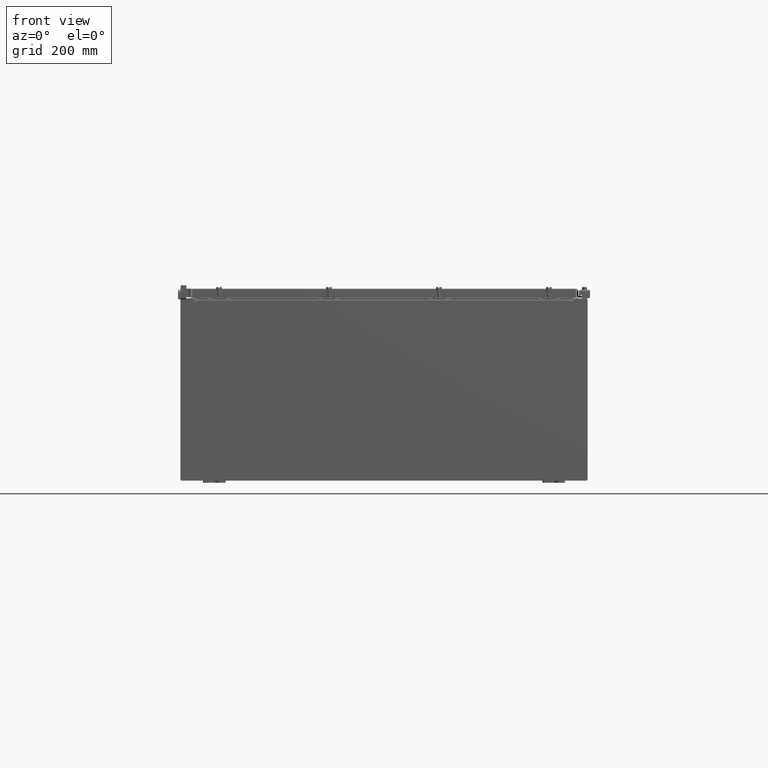
[diagram: clean part render]
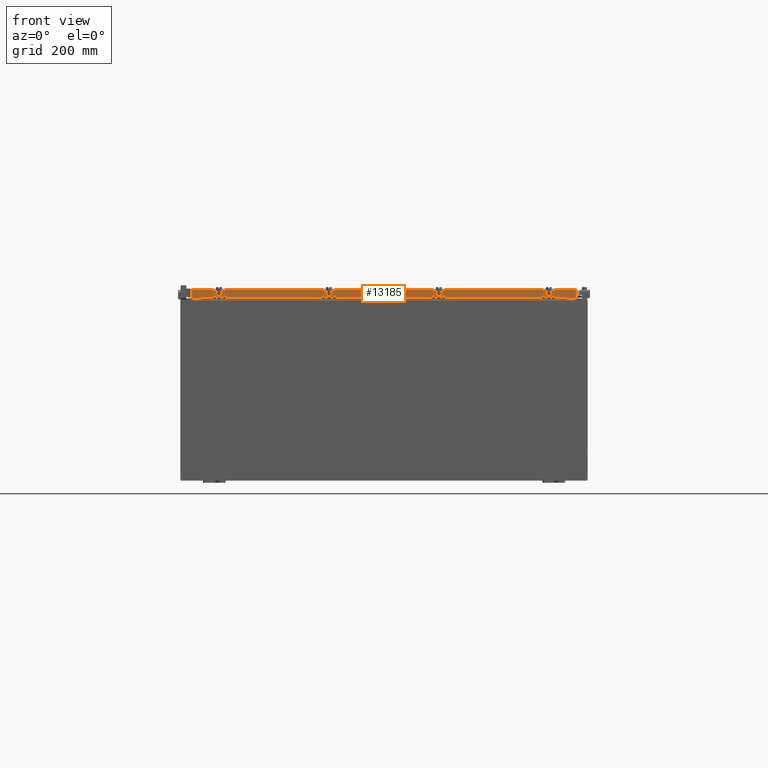
[diagram: same view with one face highlighted and labeled with its STEP entity id]
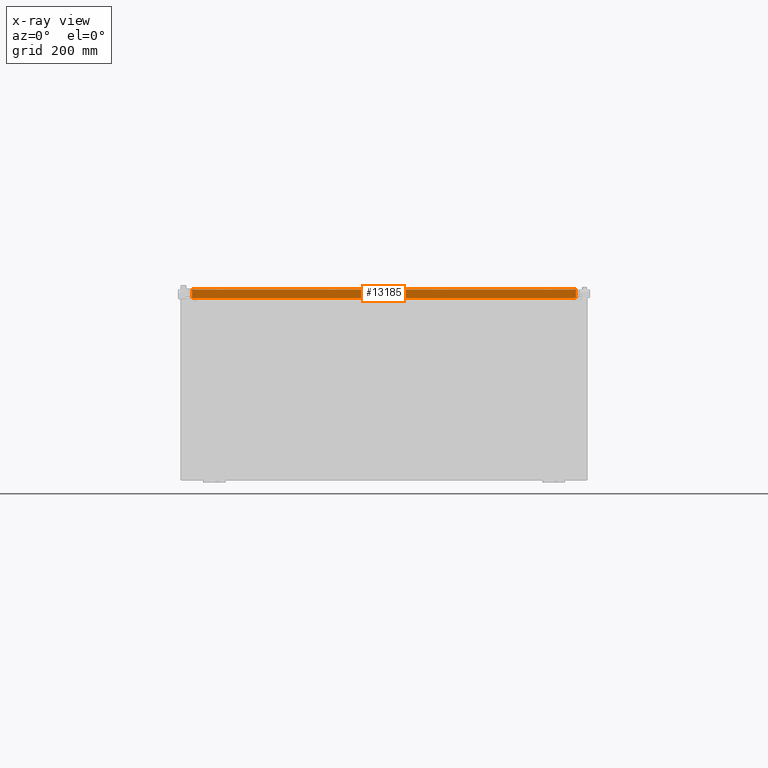
[diagram: x-ray of the same camera — body ghosted, the highlighted face saturated]
A machine part, front view. The second image highlights one B-rep face of the part: STEP entity #13185.
The next image is the same camera in x-ray: the body ghosted, the highlighted face saturated — about 0% of this face is hidden behind the body in this view.
In plain terms, the highlighted planar face has unit normal (0, 1, 0).
Its self-contained STEP definition (entity closure, byte-faithful):
#948 = LINE ( 'NONE', #12120, #17090 ) ;
#1049 = CARTESIAN_POINT ( 'NONE',  ( -16.98915786437626700, -23.09399999999999400, 0.0000000000000000000 ) ) ;
#1524 = CARTESIAN_POINT ( 'NONE',  ( -16.98915786437626700, -23.09399999999999400, -0.08769999999999589200 ) ) ;
#1727 = LINE ( 'NONE', #4473, #23193 ) ;
#3882 = CARTESIAN_POINT ( 'NONE',  ( 17.07800000000000300, -23.09400000000000100, -0.8499999999999999800 ) ) ;
#3905 = EDGE_CURVE ( 'NONE', #22900, #3979, #7809, .T. ) ;
#3979 = VERTEX_POINT ( 'NONE', #18012 ) ;
#4307 = DIRECTION ( 'NONE',  ( 1.279703943630056600E-016, 1.000000000000000000, 3.607333059089401300E-031 ) ) ;
#4473 = CARTESIAN_POINT ( 'NONE',  ( 16.23915786437626700, -23.09400000000000100, -0.8499999999999977600 ) ) ;
#5920 = DIRECTION ( 'NONE',  ( -1.000000000000000000, 1.279703943630056600E-016, 1.239713195391617400E-016 ) ) ;
#6337 = PLANE ( 'NONE',  #13201 ) ;
#7809 = LINE ( 'NONE', #3882, #13419 ) ;
#8020 = VECTOR ( 'NONE', #17784, 39.37007874015748100 ) ;
#9879 = CARTESIAN_POINT ( 'NONE',  ( 16.98915786437627100, -23.09399999999999400, -0.08769999999999589200 ) ) ;
#10499 = FACE_OUTER_BOUND ( 'NONE', #19139, .T. ) ;
#10635 = VECTOR ( 'NONE', #22774, 39.37007874015748100 ) ;
#10703 = VERTEX_POINT ( 'NONE', #9879 ) ;
#12120 = CARTESIAN_POINT ( 'NONE',  ( 16.98915786437627100, -23.09399999999999400, -0.07470000000000015500 ) ) ;
#13185 = ADVANCED_FACE ( 'NONE', ( #10499 ), #6337, .F. ) ;
#13201 = AXIS2_PLACEMENT_3D ( 'NONE', #14680, #4307, #19013 ) ;
#13405 = VECTOR ( 'NONE', #13675, 39.37007874015748100 ) ;
#13419 = VECTOR ( 'NONE', #5920, 39.37007874015748100 ) ;
#13639 = LINE ( 'NONE', #15654, #8020 ) ;
#13675 = DIRECTION ( 'NONE',  ( 0.0000000000000000000, 3.607333059089402100E-031, -1.000000000000000000 ) ) ;
#14680 = CARTESIAN_POINT ( 'NONE',  ( -2.953810643149484600E-015, -23.09399999999999400, 0.0000000000000000000 ) ) ;
#15037 = VERTEX_POINT ( 'NONE', #1524 ) ;
#15654 = CARTESIAN_POINT ( 'NONE',  ( 17.07800000000000300, -23.09399999999999400, -0.08769999999999589200 ) ) ;
#16228 = LINE ( 'NONE', #20655, #10635 ) ;
#17060 = DIRECTION ( 'NONE',  ( -1.000000000000000000, 0.0000000000000000000, 0.0000000000000000000 ) ) ;
#17090 = VECTOR ( 'NONE', #24723, 39.37007874015748100 ) ;
#17488 = ORIENTED_EDGE ( 'NONE', *, *, #3905, .F. ) ;
#17784 = DIRECTION ( 'NONE',  ( 1.000000000000000000, -1.279703943630056600E-016, 1.368455531567204500E-048 ) ) ;
#18012 = CARTESIAN_POINT ( 'NONE',  ( 16.23915786437626700, -23.09400000000000100, -0.8499999999999977600 ) ) ;
#18227 = EDGE_CURVE ( 'NONE', #19105, #20173, #16228, .T. ) ;
#18315 = LINE ( 'NONE', #1049, #13405 ) ;
#18421 = EDGE_CURVE ( 'NONE', #3979, #19105, #1727, .T. ) ;
#18643 = EDGE_CURVE ( 'NONE', #15037, #10703, #13639, .T. ) ;
#19013 = DIRECTION ( 'NONE',  ( -1.000000000000000000, 1.279703943630056600E-016, 0.0000000000000000000 ) ) ;
#19105 = VERTEX_POINT ( 'NONE', #21640 ) ;
#19139 = EDGE_LOOP ( 'NONE', ( #26175, #22467, #24927, #23361, #17488, #26101 ) ) ;
#20173 = VERTEX_POINT ( 'NONE', #24895 ) ;
#20655 = CARTESIAN_POINT ( 'NONE',  ( 17.07800000000000300, -23.09400000000000100, -0.8499999999999999800 ) ) ;
#21640 = CARTESIAN_POINT ( 'NONE',  ( -16.23915786437626400, -23.09400000000000100, -0.8499999999999977600 ) ) ;
#22090 = EDGE_CURVE ( 'NONE', #10703, #22900, #948, .T. ) ;
#22467 = ORIENTED_EDGE ( 'NONE', *, *, #23676, .T. ) ;
#22774 = DIRECTION ( 'NONE',  ( -1.000000000000000000, 1.279703943630056600E-016, 1.239713195391617400E-016 ) ) ;
#22900 = VERTEX_POINT ( 'NONE', #23353 ) ;
#23193 = VECTOR ( 'NONE', #17060, 39.37007874015748100 ) ;
#23353 = CARTESIAN_POINT ( 'NONE',  ( 16.98915786437627100, -23.09399999999999400, -0.8499999999999999800 ) ) ;
#23361 = ORIENTED_EDGE ( 'NONE', *, *, #18421, .F. ) ;
#23676 = EDGE_CURVE ( 'NONE', #15037, #20173, #18315, .T. ) ;
#24723 = DIRECTION ( 'NONE',  ( -0.0000000000000000000, 3.607333059089402100E-031, -1.000000000000000000 ) ) ;
#24895 = CARTESIAN_POINT ( 'NONE',  ( -16.98915786437626700, -23.09399999999999400, -0.8499999999999955400 ) ) ;
#24927 = ORIENTED_EDGE ( 'NONE', *, *, #18227, .F. ) ;
#26101 = ORIENTED_EDGE ( 'NONE', *, *, #22090, .F. ) ;
#26175 = ORIENTED_EDGE ( 'NONE', *, *, #18643, .F. ) ;